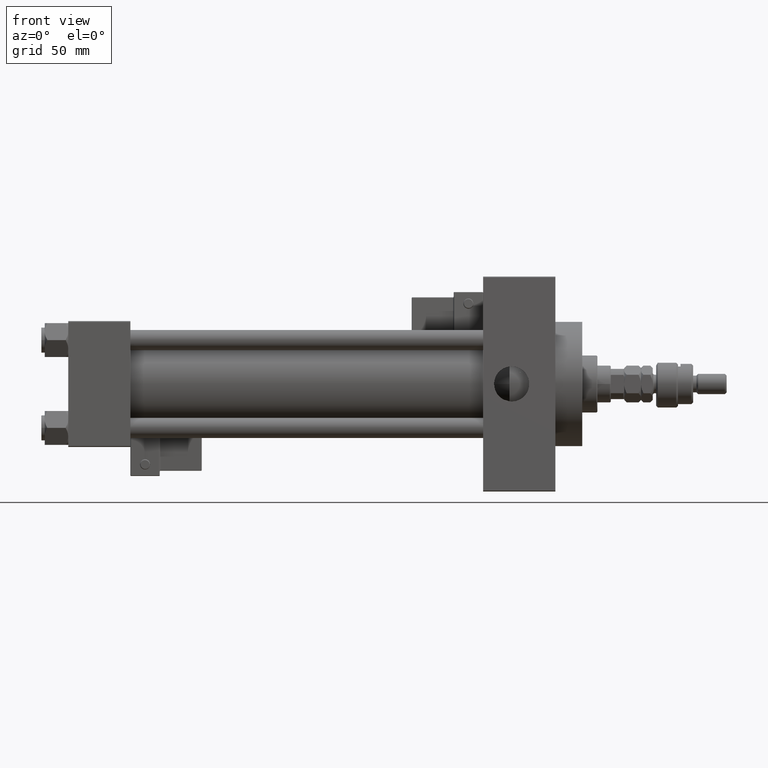
[diagram: clean part render]
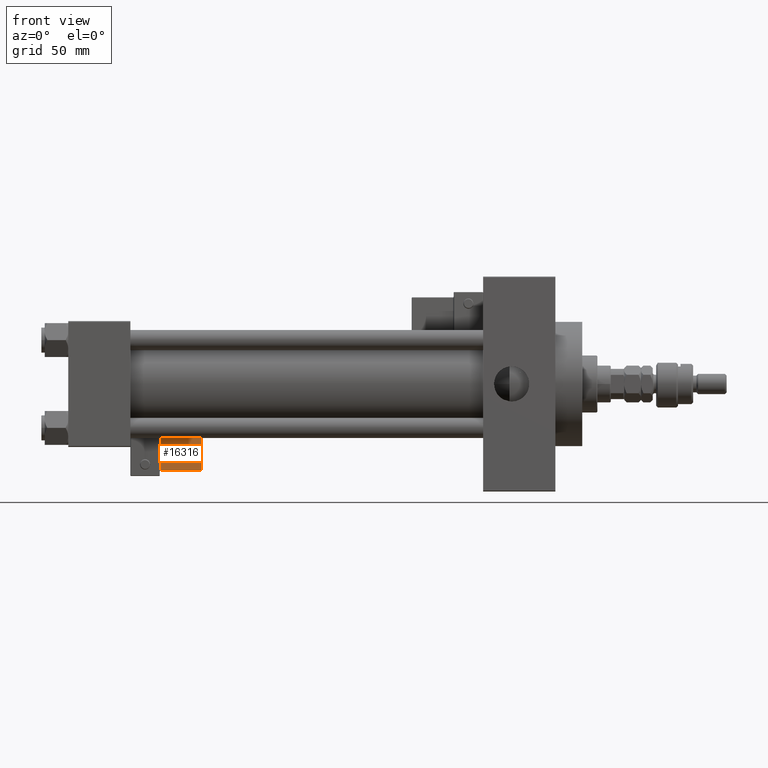
[diagram: same view with one face highlighted and labeled with its STEP entity id]
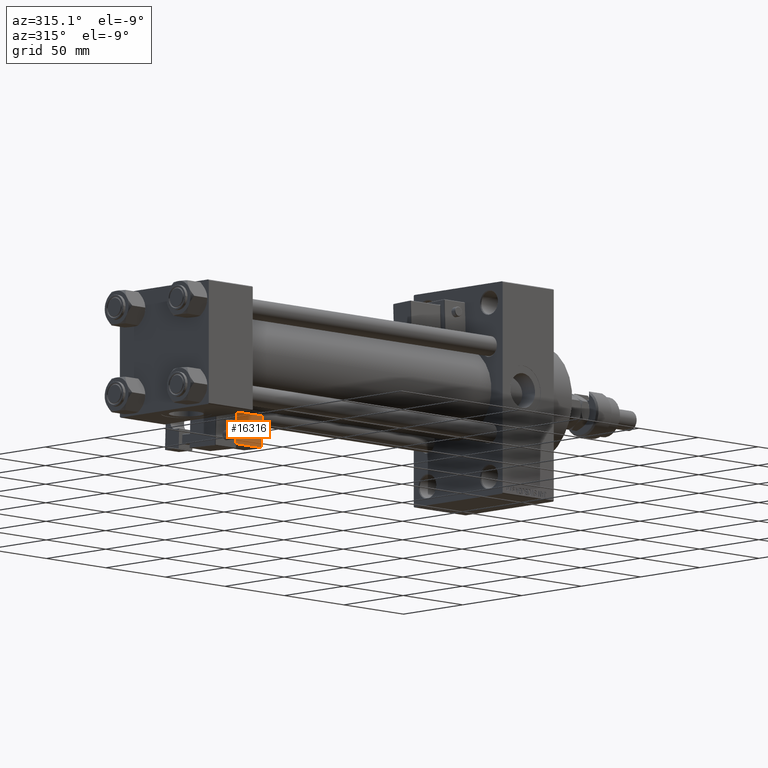
[diagram: same view with one face highlighted and labeled with its STEP entity id]
A machine part, front view. The second image highlights one B-rep face of the part: STEP entity #16316.
A second angle (auxiliary view) of the same face is appended — the face is thin or edge-on in the first view.
In plain terms, the highlighted planar face has unit normal (0, 0.9994, 0.0353).
Its self-contained STEP definition (entity closure, byte-faithful):
#56 = ORIENTED_EDGE ( 'NONE', *, *, #29971, .T. ) ;
#6103 = CARTESIAN_POINT ( 'NONE',  ( 9.250000000000005329, -36.25000000000000000, 2.000000000000005329 ) ) ;
#6761 = CARTESIAN_POINT ( 'NONE',  ( 33.24999999999999289, -36.25000000000000000, 21.50000000000000000 ) ) ;
#7596 = CARTESIAN_POINT ( 'NONE',  ( 33.75000000000000000, -36.25000000000000000, 21.50000000000000000 ) ) ;
#7847 = ORIENTED_EDGE ( 'NONE', *, *, #53038, .T. ) ;
#10209 = VECTOR ( 'NONE', #49799, 1000.000000000000000 ) ;
#10826 = DIRECTION ( 'NONE',  ( -0.000000000000000000, 1.000000000000000000, 0.000000000000000000 ) ) ;
#11522 = VECTOR ( 'NONE', #41991, 1000.000000000000000 ) ;
#11722 = LINE ( 'NONE', #7596, #10209 ) ;
#13078 = CARTESIAN_POINT ( 'NONE',  ( 33.24999999999999289, -36.25000000000000000, 22.00000000000000355 ) ) ;
#13560 = DIRECTION ( 'NONE',  ( 1.334402673828313339E-16, 0.000000000000000000, -1.000000000000000000 ) ) ;
#14239 = ORIENTED_EDGE ( 'NONE', *, *, #16571, .T. ) ;
#16316 = ADVANCED_FACE ( 'NONE', ( #27379 ), #40887, .F. ) ;
#16434 = DIRECTION ( 'NONE',  ( -1.734723475976807587E-16, -0.000000000000000000, 1.000000000000000000 ) ) ;
#16571 = EDGE_CURVE ( 'NONE', #51340, #53878, #47752, .T. ) ;
#17228 = LINE ( 'NONE', #13078, #36255 ) ;
#19144 = DIRECTION ( 'NONE',  ( 0.000000000000000000, -0.000000000000000000, 1.000000000000000000 ) ) ;
#20568 = VERTEX_POINT ( 'NONE', #6761 ) ;
#21249 = VECTOR ( 'NONE', #13560, 1000.000000000000000 ) ;
#27379 = FACE_OUTER_BOUND ( 'NONE', #51446, .T. ) ;
#29664 = VERTEX_POINT ( 'NONE', #31881 ) ;
#29971 = EDGE_CURVE ( 'NONE', #53878, #29664, #54418, .T. ) ;
#31881 = CARTESIAN_POINT ( 'NONE',  ( 33.24999999999999289, -36.25000000000000000, 2.500000000000008438 ) ) ;
#34211 = EDGE_CURVE ( 'NONE', #29664, #20568, #17228, .T. ) ;
#35291 = CARTESIAN_POINT ( 'NONE',  ( 33.75000000000000000, -36.25000000000000000, 2.500000000000009326 ) ) ;
#36224 = CARTESIAN_POINT ( 'NONE',  ( 33.75000000000000000, -36.25000000000000000, 22.00000000000000355 ) ) ;
#36255 = VECTOR ( 'NONE', #16434, 1000.000000000000000 ) ;
#40601 = AXIS2_PLACEMENT_3D ( 'NONE', #36224, #10826, #19144 ) ;
#40887 = PLANE ( 'NONE',  #40601 ) ;
#41991 = DIRECTION ( 'NONE',  ( 1.000000000000000000, -0.000000000000000000, 1.334402673828313339E-16 ) ) ;
#47246 = ORIENTED_EDGE ( 'NONE', *, *, #34211, .T. ) ;
#47752 = LINE ( 'NONE', #6103, #21249 ) ;
#47954 = CARTESIAN_POINT ( 'NONE',  ( 9.250000000000003553, -36.25000000000000000, 21.50000000000000000 ) ) ;
#49799 = DIRECTION ( 'NONE',  ( -1.000000000000000000, 0.000000000000000000, -1.334402673828313339E-16 ) ) ;
#51023 = CARTESIAN_POINT ( 'NONE',  ( 9.250000000000005329, -36.25000000000000000, 2.500000000000004885 ) ) ;
#51340 = VERTEX_POINT ( 'NONE', #47954 ) ;
#51446 = EDGE_LOOP ( 'NONE', ( #14239, #56, #47246, #7847 ) ) ;
#53038 = EDGE_CURVE ( 'NONE', #20568, #51340, #11722, .T. ) ;
#53878 = VERTEX_POINT ( 'NONE', #51023 ) ;
#54418 = LINE ( 'NONE', #35291, #11522 ) ;